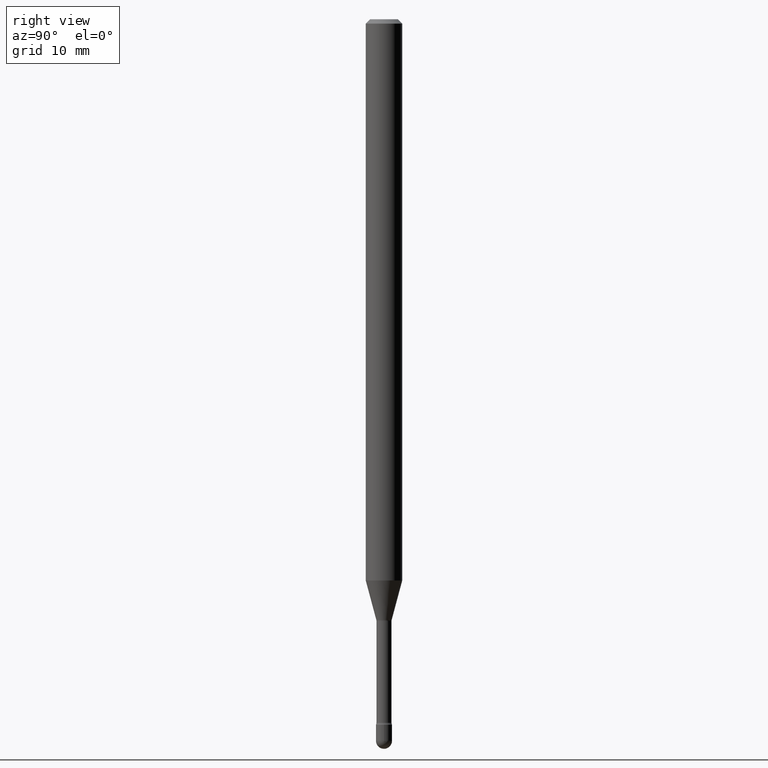
[diagram: clean part render]
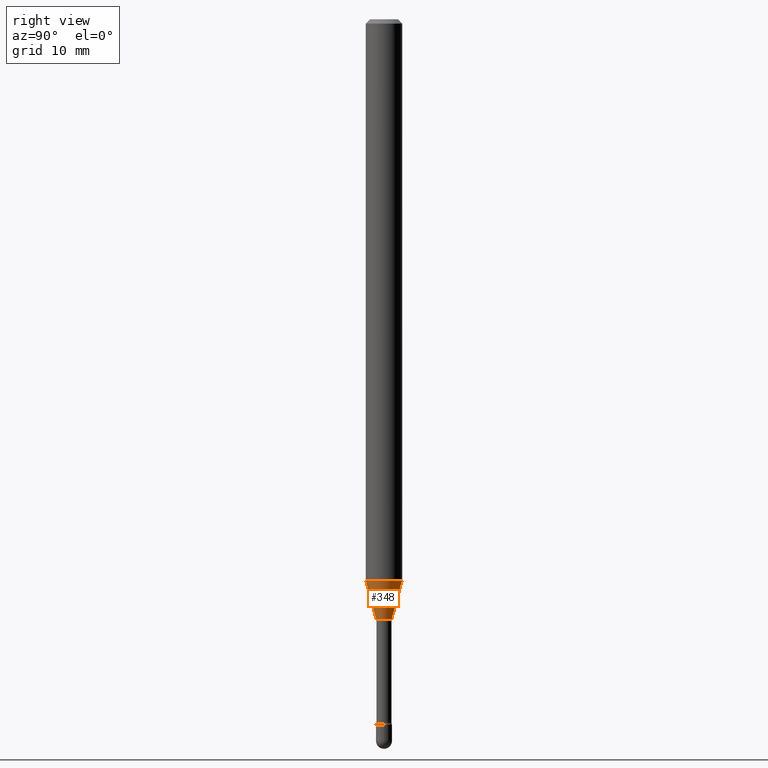
[diagram: same view with one face highlighted and labeled with its STEP entity id]
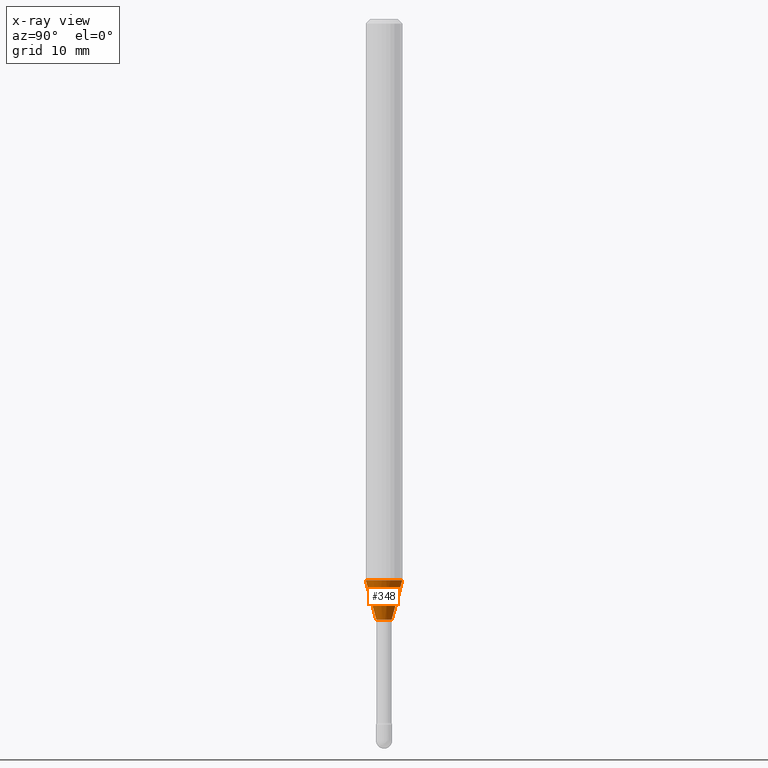
[diagram: x-ray of the same camera — body ghosted, the highlighted face saturated]
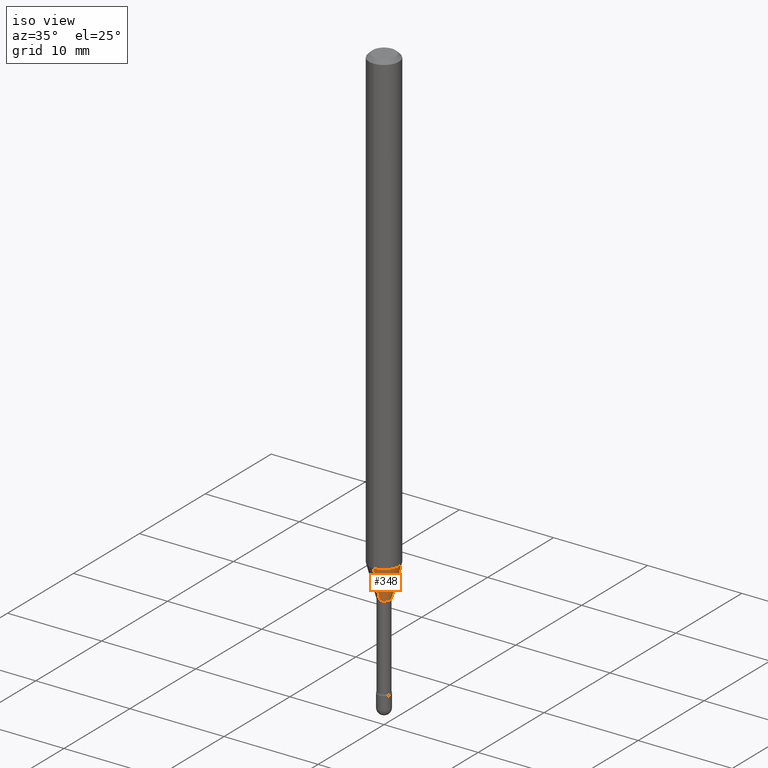
[diagram: same view with one face highlighted and labeled with its STEP entity id]
A machine part, right view. The second image highlights one B-rep face of the part: STEP entity #348.
The next image is the same camera in x-ray: the body ghosted, the highlighted face saturated — about 0% of this face is hidden behind the body in this view.
A second angle (iso view) of the same face is appended — the face is thin or edge-on in the first view.
In plain terms, the highlighted conical surface has half-angle 15 deg.
Its self-contained STEP definition (entity closure, byte-faithful):
#9 = CARTESIAN_POINT ( 'NONE',  ( 4.440892098501093562E-16, 0.06249999999999326233, -1.923220337902601162 ) ) ;
#25 = CARTESIAN_POINT ( 'NONE',  ( -1.840786654675861532E-16, -0.02636111260567115810, -2.058092501787273321 ) ) ;
#55 = EDGE_CURVE ( 'NONE', #349, #147, #116, .T. ) ;
#88 = CONICAL_SURFACE ( 'NONE', #347, 0.02636111260566397288, 0.2617993877991497409 ) ;
#110 = DIRECTION ( 'NONE',  ( -6.982962677686265922E-15, -1.000000000000000000, 4.370956789862821150E-15 ) ) ;
#116 = LINE ( 'NONE', #432, #201 ) ;
#117 = CARTESIAN_POINT ( 'NONE',  ( 5.032848138019279086E-29, -7.186010489798467438E-15, -2.058092501787273321 ) ) ;
#130 = LINE ( 'NONE', #266, #406 ) ;
#147 = VERTEX_POINT ( 'NONE', #395 ) ;
#152 = ORIENTED_EDGE ( 'NONE', *, *, #238, .T. ) ;
#153 = DIRECTION ( 'NONE',  ( -2.445394526071442946E-29, 3.491587712193716491E-15, 1.000000000000000000 ) ) ;
#157 = CIRCLE ( 'NONE', #483, 0.06250000000000000000 ) ;
#163 = ORIENTED_EDGE ( 'NONE', *, *, #55, .F. ) ;
#187 = VERTEX_POINT ( 'NONE', #316 ) ;
#197 = AXIS2_PLACEMENT_3D ( 'NONE', #117, #153, #507 ) ;
#201 = VECTOR ( 'NONE', #302, 39.37007874015748854 ) ;
#206 = VERTEX_POINT ( 'NONE', #9 ) ;
#238 = EDGE_CURVE ( 'NONE', #187, #206, #130, .T. ) ;
#245 = EDGE_LOOP ( 'NONE', ( #462, #152, #494, #163 ) ) ;
#266 = CARTESIAN_POINT ( 'NONE',  ( 1.873069706851357136E-16, 0.02636111260565679112, -2.058092501787273321 ) ) ;
#283 = DIRECTION ( 'NONE',  ( -2.445394526071442946E-29, 3.491587712193716491E-15, 1.000000000000000000 ) ) ;
#289 = CARTESIAN_POINT ( 'NONE',  ( 4.703032486736291422E-29, -6.715092499661768359E-15, -1.923220337902600940 ) ) ;
#292 = DIRECTION ( 'NONE',  ( -2.445394526071442946E-29, 3.491587712193716491E-15, 1.000000000000000000 ) ) ;
#302 = DIRECTION ( 'NONE',  ( -1.807323732225326589E-15, -0.2588190451025176864, 0.9659258262890690894 ) ) ;
#316 = CARTESIAN_POINT ( 'NONE',  ( 3.156980902676227198E-16, 0.02636111260565679112, -2.058092501787273321 ) ) ;
#328 = CARTESIAN_POINT ( 'NONE',  ( 5.032848138019279086E-29, -7.186010489798467438E-15, -2.058092501787273321 ) ) ;
#347 = AXIS2_PLACEMENT_3D ( 'NONE', #328, #283, #409 ) ;
#348 = ADVANCED_FACE ( 'NONE', ( #500 ), #88, .T. ) ;
#349 = VERTEX_POINT ( 'NONE', #25 ) ;
#383 = EDGE_CURVE ( 'NONE', #147, #206, #157, .T. ) ;
#395 = CARTESIAN_POINT ( 'NONE',  ( -4.364351673553447815E-16, -0.06250000000000673073, -1.923220337902600718 ) ) ;
#406 = VECTOR ( 'NONE', #533, 39.37007874015748143 ) ;
#409 = DIRECTION ( 'NONE',  ( -6.982962677686265922E-15, -1.000000000000000000, 0.000000000000000000 ) ) ;
#432 = CARTESIAN_POINT ( 'NONE',  ( -1.840786654675861532E-16, -0.02636111260567115810, -2.058092501787273321 ) ) ;
#441 = EDGE_CURVE ( 'NONE', #349, #187, #493, .T. ) ;
#462 = ORIENTED_EDGE ( 'NONE', *, *, #441, .T. ) ;
#483 = AXIS2_PLACEMENT_3D ( 'NONE', #289, #292, #110 ) ;
#493 = CIRCLE ( 'NONE', #197, 0.02636111260566397288 ) ;
#494 = ORIENTED_EDGE ( 'NONE', *, *, #383, .F. ) ;
#500 = FACE_OUTER_BOUND ( 'NONE', #245, .T. ) ;
#507 = DIRECTION ( 'NONE',  ( -6.982962677686265922E-15, -1.000000000000000000, 0.000000000000000000 ) ) ;
#533 = DIRECTION ( 'NONE',  ( 1.839019923739596765E-15, 0.2588190451025244587, 0.9659258262890673130 ) ) ;